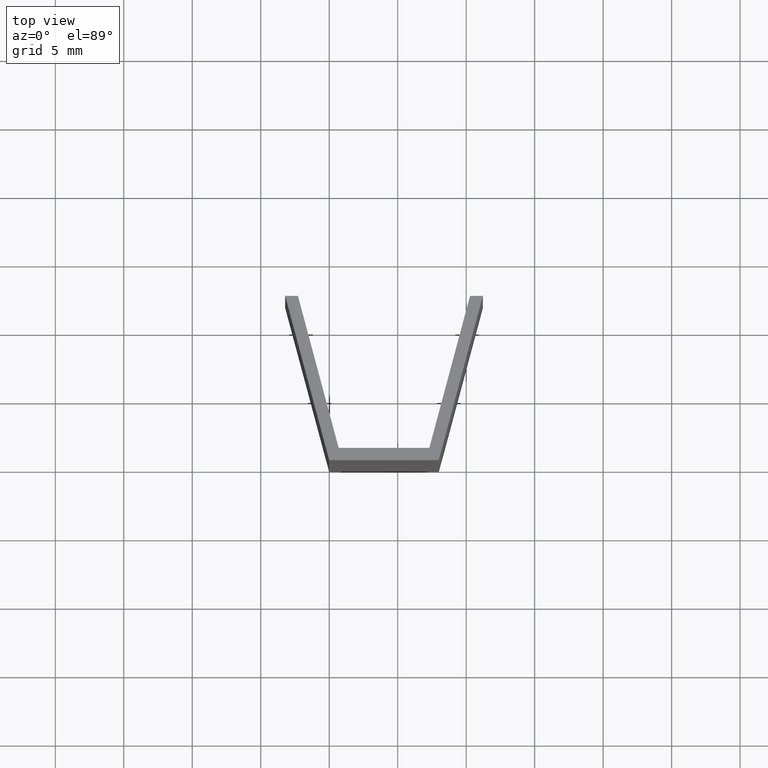
[diagram: clean part render]
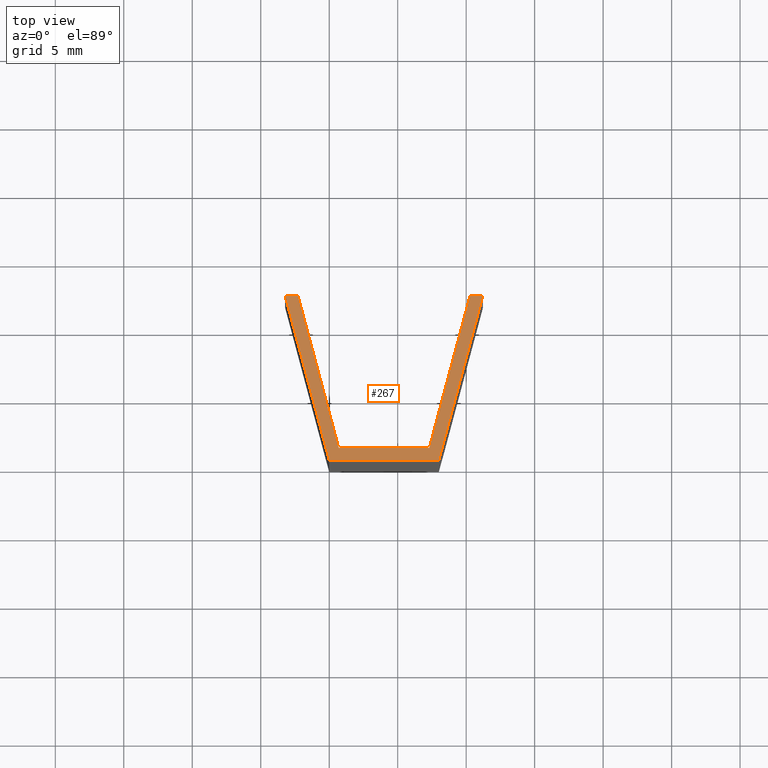
[diagram: same view with one face highlighted and labeled with its STEP entity id]
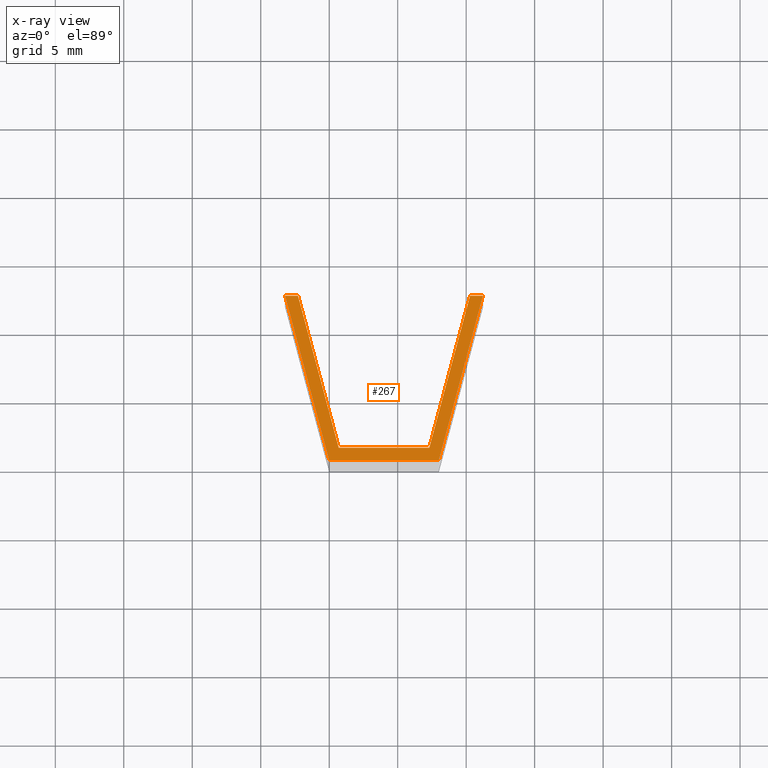
[diagram: x-ray of the same camera — body ghosted, the highlighted face saturated]
A machine part, top view. The second image highlights one B-rep face of the part: STEP entity #267.
The next image is the same camera in x-ray: the body ghosted, the highlighted face saturated — about 0% of this face is hidden behind the body in this view.
In plain terms, the highlighted planar face has unit normal (0, 0, 1).
Its self-contained STEP definition (entity closure, byte-faithful):
#4 = EDGE_CURVE ( 'NONE', #27, #43, #48, .T. ) ;
#5 = EDGE_CURVE ( 'NONE', #43, #30, #50, .T. ) ;
#6 = EDGE_CURVE ( 'NONE', #25, #27, #52, .T. ) ;
#18 = LINE ( 'NONE', #225, #19 ) ;
#19 = VECTOR ( 'NONE', #255, 1000.000000000000000 ) ;
#20 = LINE ( 'NONE', #249, #21 ) ;
#21 = VECTOR ( 'NONE', #217, 1000.000000000000100 ) ;
#25 = VERTEX_POINT ( 'NONE', #148 ) ;
#26 = VERTEX_POINT ( 'NONE', #153 ) ;
#27 = VERTEX_POINT ( 'NONE', #134 ) ;
#30 = VERTEX_POINT ( 'NONE', #151 ) ;
#34 = VERTEX_POINT ( 'NONE', #143 ) ;
#35 = VERTEX_POINT ( 'NONE', #130 ) ;
#42 = VERTEX_POINT ( 'NONE', #137 ) ;
#43 = VERTEX_POINT ( 'NONE', #138 ) ;
#48 = LINE ( 'NONE', #160, #49 ) ;
#49 = VECTOR ( 'NONE', #159, 999.9999999999998900 ) ;
#50 = LINE ( 'NONE', #144, #51 ) ;
#51 = VECTOR ( 'NONE', #145, 1000.000000000000000 ) ;
#52 = LINE ( 'NONE', #142, #53 ) ;
#53 = VECTOR ( 'NONE', #126, 1000.000000000000000 ) ;
#61 = FACE_OUTER_BOUND ( 'NONE', #293, .T. ) ;
#73 = DIRECTION ( 'NONE',  ( -1.000000000000000000, 3.276123471175167400E-017, -0.0000000000000000000 ) ) ;
#74 = CARTESIAN_POINT ( 'NONE',  ( 0.6905942891810676900, 0.9000000000000000200, 50.00000000000000000 ) ) ;
#76 = CARTESIAN_POINT ( 'NONE',  ( -2.283641746804360800, 12.00000000000000000, 50.00000000000000000 ) ) ;
#81 = DIRECTION ( 'NONE',  ( -0.2588190451025180700, 0.9659258262890690900, -0.0000000000000000000 ) ) ;
#122 = ORIENTED_EDGE ( 'NONE', *, *, #5, .T. ) ;
#123 = ORIENTED_EDGE ( 'NONE', *, *, #349, .T. ) ;
#124 = ORIENTED_EDGE ( 'NONE', *, *, #348, .T. ) ;
#126 = DIRECTION ( 'NONE',  ( -1.000000000000000000, -0.0000000000000000000, -0.0000000000000000000 ) ) ;
#130 = CARTESIAN_POINT ( 'NONE',  ( 11.21539030917343300, 12.00000000000000000, 50.00000000000000000 ) ) ;
#134 = CARTESIAN_POINT ( 'NONE',  ( -3.215390309173439000, 12.00000000000000000, 50.00000000000000000 ) ) ;
#137 = CARTESIAN_POINT ( 'NONE',  ( 7.309405710818933400, 0.8999999999999998000, 50.00000000000000000 ) ) ;
#138 = CARTESIAN_POINT ( 'NONE',  ( 0.0000000000000000000, 0.0000000000000000000, 50.00000000000000000 ) ) ;
#142 = CARTESIAN_POINT ( 'NONE',  ( -3.215390309173439000, 12.00000000000000000, 50.00000000000000000 ) ) ;
#143 = CARTESIAN_POINT ( 'NONE',  ( 10.28364174680436000, 12.00000000000000000, 50.00000000000000000 ) ) ;
#144 = CARTESIAN_POINT ( 'NONE',  ( 8.000000000000000000, -2.195599280053263200E-015, 50.00000000000000000 ) ) ;
#145 = DIRECTION ( 'NONE',  ( 1.000000000000000000, -2.744499100066579100E-016, -0.0000000000000000000 ) ) ;
#148 = CARTESIAN_POINT ( 'NONE',  ( -2.283641746804360800, 12.00000000000000000, 50.00000000000000000 ) ) ;
#151 = CARTESIAN_POINT ( 'NONE',  ( 8.000000000000000000, -2.195599280053263200E-015, 50.00000000000000000 ) ) ;
#153 = CARTESIAN_POINT ( 'NONE',  ( 0.6905942891810676900, 0.9000000000000000200, 50.00000000000000000 ) ) ;
#159 = DIRECTION ( 'NONE',  ( 0.2588190451025183000, -0.9659258262890690900, -0.0000000000000000000 ) ) ;
#160 = CARTESIAN_POINT ( 'NONE',  ( 0.0000000000000000000, 0.0000000000000000000, 50.00000000000000000 ) ) ;
#164 = LINE ( 'NONE', #231, #165 ) ;
#165 = VECTOR ( 'NONE', #223, 999.9999999999998900 ) ;
#168 = LINE ( 'NONE', #74, #169 ) ;
#169 = VECTOR ( 'NONE', #73, 1000.000000000000000 ) ;
#176 = LINE ( 'NONE', #76, #177 ) ;
#177 = VECTOR ( 'NONE', #81, 1000.000000000000100 ) ;
#216 = PLANE ( 'NONE',  #351 ) ;
#217 = DIRECTION ( 'NONE',  ( 0.2588190451025176900, 0.9659258262890690900, -0.0000000000000000000 ) ) ;
#220 = DIRECTION ( 'NONE',  ( 0.0000000000000000000, 0.0000000000000000000, 1.000000000000000000 ) ) ;
#223 = DIRECTION ( 'NONE',  ( -0.2588190451025178500, -0.9659258262890692000, -0.0000000000000000000 ) ) ;
#225 = CARTESIAN_POINT ( 'NONE',  ( 10.28364174680436000, 12.00000000000000000, 50.00000000000000000 ) ) ;
#231 = CARTESIAN_POINT ( 'NONE',  ( 7.309405710818933400, 0.8999999999999998000, 50.00000000000000000 ) ) ;
#234 = DIRECTION ( 'NONE',  ( 1.000000000000000000, 0.0000000000000000000, -0.0000000000000000000 ) ) ;
#244 = CARTESIAN_POINT ( 'NONE',  ( 8.000000000000000000, 1.734723475976807100E-015, 50.00000000000000000 ) ) ;
#249 = CARTESIAN_POINT ( 'NONE',  ( 11.21539030917343300, 12.00000000000000000, 50.00000000000000000 ) ) ;
#255 = DIRECTION ( 'NONE',  ( -1.000000000000000000, -0.0000000000000000000, -0.0000000000000000000 ) ) ;
#267 = ADVANCED_FACE ( 'NONE', ( #61 ), #216, .T. ) ;
#271 = ORIENTED_EDGE ( 'NONE', *, *, #355, .T. ) ;
#272 = ORIENTED_EDGE ( 'NONE', *, *, #357, .T. ) ;
#273 = ORIENTED_EDGE ( 'NONE', *, *, #361, .T. ) ;
#274 = ORIENTED_EDGE ( 'NONE', *, *, #6, .T. ) ;
#275 = ORIENTED_EDGE ( 'NONE', *, *, #4, .T. ) ;
#293 = EDGE_LOOP ( 'NONE', ( #122, #123, #124, #271, #272, #273, #274, #275 ) ) ;
#348 = EDGE_CURVE ( 'NONE', #35, #34, #18, .T. ) ;
#349 = EDGE_CURVE ( 'NONE', #30, #35, #20, .T. ) ;
#351 = AXIS2_PLACEMENT_3D ( 'NONE', #244, #220, #234 ) ;
#355 = EDGE_CURVE ( 'NONE', #34, #42, #164, .T. ) ;
#357 = EDGE_CURVE ( 'NONE', #42, #26, #168, .T. ) ;
#361 = EDGE_CURVE ( 'NONE', #26, #25, #176, .T. ) ;